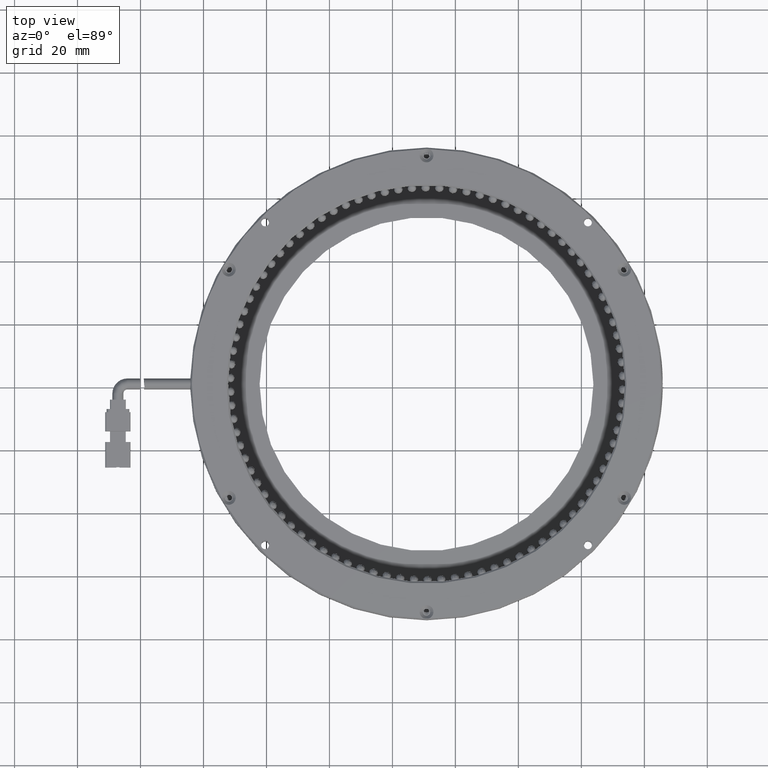
[diagram: clean part render]
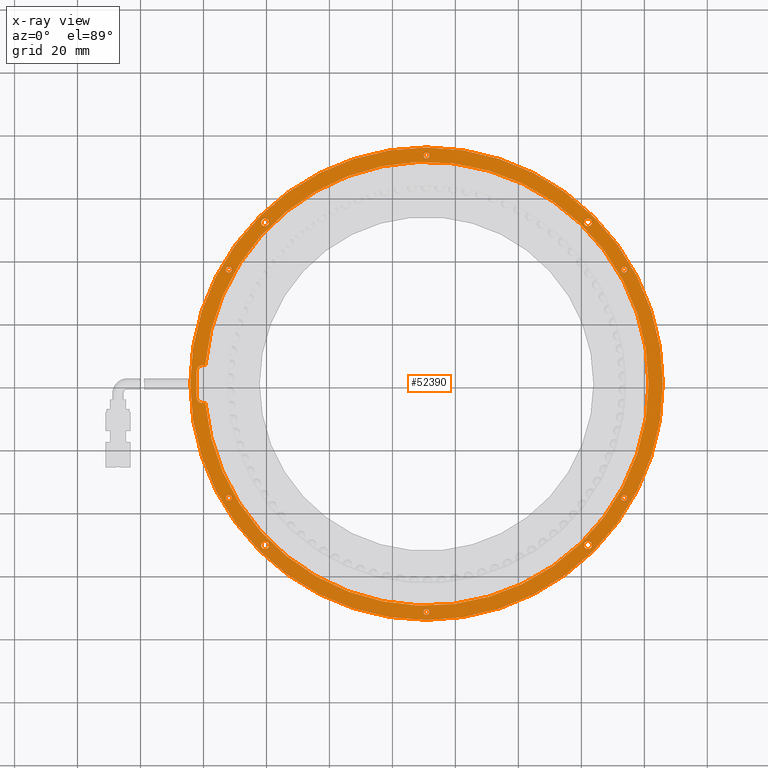
[diagram: x-ray — body ghosted, one internal face saturated and labeled with its STEP entity id]
A machine part, top view, then the same camera in x-ray: the body is ghosted and one INTERNAL B-rep face — a face not visible from any outside direction — is saturated and labeled: STEP entity #52390.
In plain terms, the highlighted planar face has unit normal (0, 0, 1).
Its self-contained STEP definition (entity closure, byte-faithful):
#529 = DIRECTION ( 'NONE',  ( 0.0000000000000000000, 0.0000000000000000000, -1.000000000000000000 ) ) ;
#1080 = DIRECTION ( 'NONE',  ( 0.0000000000000000000, 0.0000000000000000000, -1.000000000000000000 ) ) ;
#1160 = DIRECTION ( 'NONE',  ( 1.000000000000000000, 0.0000000000000000000, 0.0000000000000000000 ) ) ;
#1772 = CARTESIAN_POINT ( 'NONE',  ( 10.82239847715735200, 1.095939086294420100, 3.499999999999937400 ) ) ;
#1985 = DIRECTION ( 'NONE',  ( 0.0000000000000000000, 0.0000000000000000000, -1.000000000000000000 ) ) ;
#2218 = EDGE_LOOP ( 'NONE', ( #38674, #23621, #7528, #10132, #32242, #11933, #12980 ) ) ;
#2380 = LINE ( 'NONE', #49113, #23317 ) ;
#2541 = ORIENTED_EDGE ( 'NONE', *, *, #18518, .T. ) ;
#2583 = CIRCLE ( 'NONE', #45547, 0.9999999999999991100 ) ;
#3196 = VERTEX_POINT ( 'NONE', #19024 ) ;
#3344 = EDGE_LOOP ( 'NONE', ( #58690, #57324 ) ) ;
#3404 = ORIENTED_EDGE ( 'NONE', *, *, #26146, .T. ) ;
#3416 = DIRECTION ( 'NONE',  ( 0.0000000000000000000, 0.0000000000000000000, -1.000000000000000000 ) ) ;
#3761 = CARTESIAN_POINT ( 'NONE',  ( 10.82239847715735200, 1.095939086294420100, 3.499999999999937400 ) ) ;
#3821 = VERTEX_POINT ( 'NONE', #35001 ) ;
#4174 = VERTEX_POINT ( 'NONE', #43969 ) ;
#4506 = CARTESIAN_POINT ( 'NONE',  ( 10.82239847715735200, 1.095939086294420100, 3.499999999999937400 ) ) ;
#4606 = EDGE_CURVE ( 'NONE', #3196, #70110, #60109, .T. ) ;
#4738 = DIRECTION ( 'NONE',  ( 0.0000000000000000000, 0.0000000000000000000, -1.000000000000000000 ) ) ;
#4808 = DIRECTION ( 'NONE',  ( -1.000000000000000000, 0.0000000000000000000, 0.0000000000000000000 ) ) ;
#5698 = CARTESIAN_POINT ( 'NONE',  ( -62.17760152284265700, 4.988395143653201900, 3.499999999999937400 ) ) ;
#5795 = FACE_BOUND ( 'NONE', #50201, .T. ) ;
#7046 = CARTESIAN_POINT ( 'NONE',  ( 10.82239847715735200, 1.095939086294420100, 3.499999999999937400 ) ) ;
#7193 = CARTESIAN_POINT ( 'NONE',  ( 10.82239847715786100, -71.40406091370557800, 3.499999999999937400 ) ) ;
#7342 = DIRECTION ( 'NONE',  ( 0.0000000000000000000, 0.0000000000000000000, -1.000000000000000000 ) ) ;
#7367 = AXIS2_PLACEMENT_3D ( 'NONE', #52627, #16225, #58751 ) ;
#7528 = ORIENTED_EDGE ( 'NONE', *, *, #72624, .T. ) ;
#7615 = AXIS2_PLACEMENT_3D ( 'NONE', #37510, #1080, #43636 ) ;
#7663 = EDGE_CURVE ( 'NONE', #18859, #10379, #54017, .T. ) ;
#7691 = AXIS2_PLACEMENT_3D ( 'NONE', #35673, #78199, #41775 ) ;
#7710 = FACE_BOUND ( 'NONE', #62506, .T. ) ;
#7854 = EDGE_CURVE ( 'NONE', #33839, #59008, #2380, .T. ) ;
#7877 = DIRECTION ( 'NONE',  ( -1.000000000000000000, 0.0000000000000000000, 0.0000000000000000000 ) ) ;
#8466 = VERTEX_POINT ( 'NONE', #56436 ) ;
#9268 = VERTEX_POINT ( 'NONE', #51181 ) ;
#9604 = FACE_OUTER_BOUND ( 'NONE', #35808, .T. ) ;
#9817 = CARTESIAN_POINT ( 'NONE',  ( 81.32239847715736400, 1.095939086294420100, 3.499999999999937400 ) ) ;
#9901 = DIRECTION ( 'NONE',  ( 1.000000000000000000, 0.0000000000000000000, -0.0000000000000000000 ) ) ;
#10132 = ORIENTED_EDGE ( 'NONE', *, *, #13871, .T. ) ;
#10341 = CARTESIAN_POINT ( 'NONE',  ( -39.19284315886763200, 52.36118072231883500, 3.499999999999938700 ) ) ;
#10379 = VERTEX_POINT ( 'NONE', #16891 ) ;
#10679 = DIRECTION ( 'NONE',  ( 1.000000000000000000, 0.0000000000000000000, 0.0000000000000000000 ) ) ;
#10714 = DIRECTION ( 'NONE',  ( 0.0000000000000000000, 0.0000000000000000000, -1.000000000000000000 ) ) ;
#11806 = CIRCLE ( 'NONE', #13100, 2.000000000000001800 ) ;
#11841 = CARTESIAN_POINT ( 'NONE',  ( -40.44284315886761800, 52.36118072231883500, 3.499999999999938700 ) ) ;
#11933 = ORIENTED_EDGE ( 'NONE', *, *, #70489, .T. ) ;
#12803 = CIRCLE ( 'NONE', #52159, 2.000000000000001800 ) ;
#12980 = ORIENTED_EDGE ( 'NONE', *, *, #35526, .T. ) ;
#13100 = AXIS2_PLACEMENT_3D ( 'NONE', #29072, #71523, #35218 ) ;
#13215 = DIRECTION ( 'NONE',  ( 1.000000000000000000, 0.0000000000000000000, 0.0000000000000000000 ) ) ;
#13351 = DIRECTION ( 'NONE',  ( 1.000000000000000000, 0.0000000000000000000, 0.0000000000000000000 ) ) ;
#13871 = EDGE_CURVE ( 'NONE', #72952, #27627, #43177, .T. ) ;
#14044 = CIRCLE ( 'NONE', #20064, 75.00000000000001400 ) ;
#14289 = CARTESIAN_POINT ( 'NONE',  ( 62.08764011318194800, 52.36118072231920500, 3.499999999999938700 ) ) ;
#14328 = CARTESIAN_POINT ( 'NONE',  ( -50.96444329721429500, -35.15406091370587700, 3.499999999999937400 ) ) ;
#14357 = AXIS2_PLACEMENT_3D ( 'NONE', #14289, #56757, #20388 ) ;
#14907 = VERTEX_POINT ( 'NONE', #78791 ) ;
#14914 = VERTEX_POINT ( 'NONE', #72629 ) ;
#15098 = EDGE_LOOP ( 'NONE', ( #3404, #54856 ) ) ;
#15598 = AXIS2_PLACEMENT_3D ( 'NONE', #41187, #4738, #47287 ) ;
#15759 = ORIENTED_EDGE ( 'NONE', *, *, #7663, .T. ) ;
#16155 = ORIENTED_EDGE ( 'NONE', *, *, #53528, .T. ) ;
#16225 = DIRECTION ( 'NONE',  ( 0.0000000000000000000, 0.0000000000000000000, -1.000000000000000000 ) ) ;
#16666 = AXIS2_PLACEMENT_3D ( 'NONE', #25049, #67556, #31196 ) ;
#16786 = CIRCLE ( 'NONE', #47636, 1.000000000000000900 ) ;
#16891 = CARTESIAN_POINT ( 'NONE',  ( -41.69284315886760300, 52.36118072231883500, 3.499999999999938700 ) ) ;
#17441 = CARTESIAN_POINT ( 'NONE',  ( 10.82239847715735200, 1.095939086294420100, 3.499999999999937400 ) ) ;
#17940 = DIRECTION ( 'NONE',  ( 1.000000000000000000, 0.0000000000000000000, 0.0000000000000000000 ) ) ;
#18518 = EDGE_CURVE ( 'NONE', #77062, #3821, #30831, .T. ) ;
#18859 = VERTEX_POINT ( 'NONE', #10341 ) ;
#19024 = CARTESIAN_POINT ( 'NONE',  ( -52.96444329721429500, -35.15406091370587700, 3.499999999999937400 ) ) ;
#19225 = CARTESIAN_POINT ( 'NONE',  ( -64.17760152284266400, 1.095939086294420100, 3.499999999999937400 ) ) ;
#19579 = AXIS2_PLACEMENT_3D ( 'NONE', #43795, #7342, #49874 ) ;
#19890 = CARTESIAN_POINT ( 'NONE',  ( 85.82239847715736400, 1.095939086294429400, 3.499999999999937400 ) ) ;
#20064 = AXIS2_PLACEMENT_3D ( 'NONE', #17441, #60003, #23573 ) ;
#20388 = DIRECTION ( 'NONE',  ( 1.000000000000000000, 0.0000000000000000000, 0.0000000000000000000 ) ) ;
#20985 = AXIS2_PLACEMENT_3D ( 'NONE', #4506, #47082, #10679 ) ;
#21234 = AXIS2_PLACEMENT_3D ( 'NONE', #59541, #23120, #65590 ) ;
#21527 = AXIS2_PLACEMENT_3D ( 'NONE', #3761, #46312, #9901 ) ;
#21877 = PLANE ( 'NONE',  #21527 ) ;
#21901 = AXIS2_PLACEMENT_3D ( 'NONE', #1772, #44304, #7877 ) ;
#21971 = FACE_BOUND ( 'NONE', #23962, .T. ) ;
#22372 = ORIENTED_EDGE ( 'NONE', *, *, #31380, .T. ) ;
#22617 = CIRCLE ( 'NONE', #61285, 70.50000000000000000 ) ;
#23120 = DIRECTION ( 'NONE',  ( 0.0000000000000000000, 0.0000000000000000000, -1.000000000000000000 ) ) ;
#23317 = VECTOR ( 'NONE', #24684, 1000.000000000000000 ) ;
#23573 = DIRECTION ( 'NONE',  ( -1.000000000000000000, 0.0000000000000000000, 0.0000000000000000000 ) ) ;
#23621 = ORIENTED_EDGE ( 'NONE', *, *, #31689, .T. ) ;
#23777 = EDGE_CURVE ( 'NONE', #24259, #53877, #42274, .T. ) ;
#23897 = FACE_BOUND ( 'NONE', #3344, .T. ) ;
#23962 = EDGE_LOOP ( 'NONE', ( #29957, #42124 ) ) ;
#24259 = VERTEX_POINT ( 'NONE', #41057 ) ;
#24406 = ORIENTED_EDGE ( 'NONE', *, *, #49756, .T. ) ;
#24550 = CARTESIAN_POINT ( 'NONE',  ( 73.60924025152948500, -35.15406091370500300, 3.499999999999937400 ) ) ;
#24684 = DIRECTION ( 'NONE',  ( -0.0000000000000000000, 1.000000000000000000, 0.0000000000000000000 ) ) ;
#25049 = CARTESIAN_POINT ( 'NONE',  ( -40.44284315886688600, -50.16930254973072300, 3.499999999999938700 ) ) ;
#25619 = VECTOR ( 'NONE', #70657, 1000.000000000000000 ) ;
#26092 = CARTESIAN_POINT ( 'NONE',  ( -51.96444329721429500, -35.15406091370587700, 3.499999999999937400 ) ) ;
#26146 = EDGE_CURVE ( 'NONE', #70110, #3196, #66838, .T. ) ;
#26247 = DIRECTION ( 'NONE',  ( 1.000000000000000000, 0.0000000000000000000, -0.0000000000000000000 ) ) ;
#26289 = CIRCLE ( 'NONE', #67101, 1.249999999999987100 ) ;
#26496 = EDGE_CURVE ( 'NONE', #55736, #33042, #72440, .T. ) ;
#26709 = CIRCLE ( 'NONE', #56013, 0.9999999999999991100 ) ;
#27627 = VERTEX_POINT ( 'NONE', #9817 ) ;
#28180 = CARTESIAN_POINT ( 'NONE',  ( -62.17760152284264300, -5.011604856346799000, 3.499999999999937400 ) ) ;
#28470 = CIRCLE ( 'NONE', #33759, 1.249999999999987100 ) ;
#29072 = CARTESIAN_POINT ( 'NONE',  ( -60.17760152284265700, 4.988395143653201900, 3.499999999999937400 ) ) ;
#29221 = VERTEX_POINT ( 'NONE', #39342 ) ;
#29957 = ORIENTED_EDGE ( 'NONE', *, *, #63773, .T. ) ;
#30101 = CARTESIAN_POINT ( 'NONE',  ( 62.08764011318267300, -50.16930254972964300, 3.499999999999938700 ) ) ;
#30118 = VERTEX_POINT ( 'NONE', #60185 ) ;
#30412 = VERTEX_POINT ( 'NONE', #69118 ) ;
#30720 = DIRECTION ( 'NONE',  ( 1.000000000000000000, 0.0000000000000000000, 0.0000000000000000000 ) ) ;
#30831 = CIRCLE ( 'NONE', #7615, 1.000000000000000900 ) ;
#31196 = DIRECTION ( 'NONE',  ( 1.000000000000000000, 0.0000000000000000000, 0.0000000000000000000 ) ) ;
#31380 = EDGE_CURVE ( 'NONE', #14907, #50637, #59469, .T. ) ;
#31689 = EDGE_CURVE ( 'NONE', #59008, #45593, #11806, .T. ) ;
#32242 = ORIENTED_EDGE ( 'NONE', *, *, #34692, .T. ) ;
#32270 = DIRECTION ( 'NONE',  ( 1.000000000000000000, 0.0000000000000000000, 0.0000000000000000000 ) ) ;
#32576 = VERTEX_POINT ( 'NONE', #63509 ) ;
#33042 = VERTEX_POINT ( 'NONE', #38718 ) ;
#33136 = AXIS2_PLACEMENT_3D ( 'NONE', #37017, #529, #43090 ) ;
#33759 = AXIS2_PLACEMENT_3D ( 'NONE', #11841, #54360, #17940 ) ;
#33821 = VECTOR ( 'NONE', #26247, 1000.000000000000000 ) ;
#33839 = VERTEX_POINT ( 'NONE', #77193 ) ;
#34074 = ORIENTED_EDGE ( 'NONE', *, *, #50395, .T. ) ;
#34350 = DIRECTION ( 'NONE',  ( 0.0000000000000000000, 0.0000000000000000000, -1.000000000000000000 ) ) ;
#34405 = EDGE_LOOP ( 'NONE', ( #2541, #72035 ) ) ;
#34692 = EDGE_CURVE ( 'NONE', #27627, #29221, #22617, .T. ) ;
#34817 = CARTESIAN_POINT ( 'NONE',  ( -39.19284315886690000, -50.16930254973072300, 3.499999999999938700 ) ) ;
#35001 = CARTESIAN_POINT ( 'NONE',  ( 72.60924025152871800, 37.34593908629515400, 3.499999999999937400 ) ) ;
#35218 = DIRECTION ( 'NONE',  ( -1.000000000000000000, 0.0000000000000000000, 0.0000000000000000000 ) ) ;
#35526 = EDGE_CURVE ( 'NONE', #8466, #33839, #12803, .T. ) ;
#35673 = CARTESIAN_POINT ( 'NONE',  ( 62.08764011318194800, 52.36118072231920500, 3.499999999999938700 ) ) ;
#35808 = EDGE_LOOP ( 'NONE', ( #78816, #57613 ) ) ;
#35989 = CARTESIAN_POINT ( 'NONE',  ( 73.60924025152948500, -35.15406091370500300, 3.499999999999937400 ) ) ;
#36233 = DIRECTION ( 'NONE',  ( 1.000000000000000000, 0.0000000000000000000, 0.0000000000000000000 ) ) ;
#36654 = EDGE_LOOP ( 'NONE', ( #15759, #34074 ) ) ;
#37017 = CARTESIAN_POINT ( 'NONE',  ( -51.96444329721429500, -35.15406091370587700, 3.499999999999937400 ) ) ;
#37253 = EDGE_CURVE ( 'NONE', #14914, #69201, #46880, .T. ) ;
#37510 = CARTESIAN_POINT ( 'NONE',  ( 73.60924025152871800, 37.34593908629515400, 3.499999999999937400 ) ) ;
#37599 = DIRECTION ( 'NONE',  ( 0.0000000000000000000, 0.0000000000000000000, -1.000000000000000000 ) ) ;
#37757 = ORIENTED_EDGE ( 'NONE', *, *, #64796, .T. ) ;
#38159 = FACE_BOUND ( 'NONE', #36654, .T. ) ;
#38403 = CARTESIAN_POINT ( 'NONE',  ( -51.96444329721453000, 37.34593908629427300, 3.499999999999937400 ) ) ;
#38516 = EDGE_LOOP ( 'NONE', ( #76820, #24406 ) ) ;
#38674 = ORIENTED_EDGE ( 'NONE', *, *, #7854, .T. ) ;
#38718 = CARTESIAN_POINT ( 'NONE',  ( 60.83764011318196200, 52.36118072231920500, 3.499999999999938700 ) ) ;
#39102 = CIRCLE ( 'NONE', #14357, 1.249999999999987100 ) ;
#39342 = CARTESIAN_POINT ( 'NONE',  ( -59.41254942620987100, -5.011604856346798100, 3.499999999999937400 ) ) ;
#39380 = CIRCLE ( 'NONE', #21901, 75.00000000000001400 ) ;
#39873 = CARTESIAN_POINT ( 'NONE',  ( 10.82239847715735000, 73.59593908629442200, 3.499999999999937400 ) ) ;
#40033 = FACE_BOUND ( 'NONE', #42706, .T. ) ;
#40199 = AXIS2_PLACEMENT_3D ( 'NONE', #73989, #37599, #1160 ) ;
#40442 = CIRCLE ( 'NONE', #15598, 0.9999999999999991100 ) ;
#41057 = CARTESIAN_POINT ( 'NONE',  ( 60.83764011318268700, -50.16930254972964300, 3.499999999999938700 ) ) ;
#41187 = CARTESIAN_POINT ( 'NONE',  ( 10.82239847715786100, -71.40406091370557800, 3.499999999999937400 ) ) ;
#41247 = DIRECTION ( 'NONE',  ( 0.0000000000000000000, 0.0000000000000000000, -1.000000000000000000 ) ) ;
#41616 = CARTESIAN_POINT ( 'NONE',  ( 63.33764011318193400, 52.36118072231920500, 3.499999999999938700 ) ) ;
#41775 = DIRECTION ( 'NONE',  ( 1.000000000000000000, 0.0000000000000000000, 0.0000000000000000000 ) ) ;
#42075 = DIRECTION ( 'NONE',  ( 1.000000000000000000, 0.0000000000000000000, 0.0000000000000000000 ) ) ;
#42124 = ORIENTED_EDGE ( 'NONE', *, *, #71877, .T. ) ;
#42274 = CIRCLE ( 'NONE', #65386, 1.249999999999987100 ) ;
#42706 = EDGE_LOOP ( 'NONE', ( #76979, #22372 ) ) ;
#43090 = DIRECTION ( 'NONE',  ( 1.000000000000000000, 0.0000000000000000000, 0.0000000000000000000 ) ) ;
#43177 = CIRCLE ( 'NONE', #20985, 70.50000000000000000 ) ;
#43636 = DIRECTION ( 'NONE',  ( 1.000000000000000000, 0.0000000000000000000, 0.0000000000000000000 ) ) ;
#43795 = CARTESIAN_POINT ( 'NONE',  ( -51.96444329721453000, 37.34593908629427300, 3.499999999999937400 ) ) ;
#43969 = CARTESIAN_POINT ( 'NONE',  ( -41.69284315886687200, -50.16930254973072300, 3.499999999999938700 ) ) ;
#44304 = DIRECTION ( 'NONE',  ( 0.0000000000000000000, 0.0000000000000000000, 1.000000000000000000 ) ) ;
#44551 = DIRECTION ( 'NONE',  ( 1.000000000000000000, 0.0000000000000000000, 0.0000000000000000000 ) ) ;
#44854 = AXIS2_PLACEMENT_3D ( 'NONE', #26092, #68629, #32270 ) ;
#45547 = AXIS2_PLACEMENT_3D ( 'NONE', #39873, #3416, #45979 ) ;
#45593 = VERTEX_POINT ( 'NONE', #65823 ) ;
#45979 = DIRECTION ( 'NONE',  ( 1.000000000000000000, 0.0000000000000000000, 0.0000000000000000000 ) ) ;
#46312 = DIRECTION ( 'NONE',  ( 0.0000000000000000000, 0.0000000000000000000, 1.000000000000000000 ) ) ;
#46880 = CIRCLE ( 'NONE', #57479, 1.000000000000000900 ) ;
#47082 = DIRECTION ( 'NONE',  ( 0.0000000000000000000, 0.0000000000000000000, -1.000000000000000000 ) ) ;
#47125 = CARTESIAN_POINT ( 'NONE',  ( 62.08764011318267300, -50.16930254972964300, 3.499999999999938700 ) ) ;
#47287 = DIRECTION ( 'NONE',  ( 1.000000000000000000, 0.0000000000000000000, 0.0000000000000000000 ) ) ;
#47636 = AXIS2_PLACEMENT_3D ( 'NONE', #24550, #67015, #30720 ) ;
#47948 = AXIS2_PLACEMENT_3D ( 'NONE', #70706, #34350, #76926 ) ;
#48152 = ORIENTED_EDGE ( 'NONE', *, *, #50989, .T. ) ;
#48389 = ORIENTED_EDGE ( 'NONE', *, *, #37253, .T. ) ;
#48830 = VERTEX_POINT ( 'NONE', #34817 ) ;
#49113 = CARTESIAN_POINT ( 'NONE',  ( -62.17760152284264300, 1.095939086294420100, 3.499999999999937400 ) ) ;
#49584 = DIRECTION ( 'NONE',  ( 0.0000000000000000000, 0.0000000000000000000, -1.000000000000000000 ) ) ;
#49737 = DIRECTION ( 'NONE',  ( 0.0000000000000000000, 0.0000000000000000000, -1.000000000000000000 ) ) ;
#49756 = EDGE_CURVE ( 'NONE', #32576, #30412, #62764, .T. ) ;
#49874 = DIRECTION ( 'NONE',  ( 1.000000000000000000, 0.0000000000000000000, 0.0000000000000000000 ) ) ;
#50059 = ORIENTED_EDGE ( 'NONE', *, *, #23777, .T. ) ;
#50201 = EDGE_LOOP ( 'NONE', ( #48152, #50059 ) ) ;
#50395 = EDGE_CURVE ( 'NONE', #10379, #18859, #28470, .T. ) ;
#50552 = CARTESIAN_POINT ( 'NONE',  ( 74.60924025152871800, 37.34593908629515400, 3.499999999999937400 ) ) ;
#50637 = VERTEX_POINT ( 'NONE', #56642 ) ;
#50989 = EDGE_CURVE ( 'NONE', #53877, #24259, #26289, .T. ) ;
#51181 = CARTESIAN_POINT ( 'NONE',  ( 9.822398477157861400, -71.40406091370557800, 3.499999999999937400 ) ) ;
#51942 = CARTESIAN_POINT ( 'NONE',  ( 72.60924025152948500, -35.15406091370500300, 3.499999999999937400 ) ) ;
#52159 = AXIS2_PLACEMENT_3D ( 'NONE', #77688, #41247, #4808 ) ;
#52390 = ADVANCED_FACE ( 'NONE', ( #9604, #72359, #40033, #56179, #23897, #7710, #70434, #54321, #38159, #21971, #5795, #68561 ), #21877, .T. ) ;
#52587 = CIRCLE ( 'NONE', #40199, 1.249999999999987100 ) ;
#52627 = CARTESIAN_POINT ( 'NONE',  ( 73.60924025152871800, 37.34593908629515400, 3.499999999999937400 ) ) ;
#52994 = EDGE_CURVE ( 'NONE', #50637, #14907, #58820, .T. ) ;
#53237 = DIRECTION ( 'NONE',  ( 1.000000000000000000, 0.0000000000000000000, 0.0000000000000000000 ) ) ;
#53528 = EDGE_CURVE ( 'NONE', #69201, #14914, #16786, .T. ) ;
#53877 = VERTEX_POINT ( 'NONE', #65094 ) ;
#54017 = CIRCLE ( 'NONE', #21234, 1.249999999999987100 ) ;
#54321 = FACE_BOUND ( 'NONE', #57460, .T. ) ;
#54360 = DIRECTION ( 'NONE',  ( 0.0000000000000000000, 0.0000000000000000000, -1.000000000000000000 ) ) ;
#54856 = ORIENTED_EDGE ( 'NONE', *, *, #4606, .T. ) ;
#55584 = CIRCLE ( 'NONE', #16666, 1.249999999999987100 ) ;
#55736 = VERTEX_POINT ( 'NONE', #41616 ) ;
#56013 = AXIS2_PLACEMENT_3D ( 'NONE', #7193, #49737, #13351 ) ;
#56030 = CIRCLE ( 'NONE', #7367, 1.000000000000000900 ) ;
#56179 = FACE_BOUND ( 'NONE', #15098, .T. ) ;
#56436 = CARTESIAN_POINT ( 'NONE',  ( -60.17760152284265700, -5.011604856346799900, 3.499999999999937400 ) ) ;
#56642 = CARTESIAN_POINT ( 'NONE',  ( -50.96444329721453000, 37.34593908629427300, 3.499999999999937400 ) ) ;
#56757 = DIRECTION ( 'NONE',  ( 0.0000000000000000000, 0.0000000000000000000, -1.000000000000000000 ) ) ;
#57324 = ORIENTED_EDGE ( 'NONE', *, *, #62972, .T. ) ;
#57460 = EDGE_LOOP ( 'NONE', ( #68999, #37757 ) ) ;
#57479 = AXIS2_PLACEMENT_3D ( 'NONE', #35989, #78485, #42075 ) ;
#57613 = ORIENTED_EDGE ( 'NONE', *, *, #65835, .T. ) ;
#58690 = ORIENTED_EDGE ( 'NONE', *, *, #64201, .T. ) ;
#58751 = DIRECTION ( 'NONE',  ( 1.000000000000000000, 0.0000000000000000000, 0.0000000000000000000 ) ) ;
#58820 = CIRCLE ( 'NONE', #19579, 1.000000000000000900 ) ;
#59008 = VERTEX_POINT ( 'NONE', #5698 ) ;
#59469 = CIRCLE ( 'NONE', #74691, 1.000000000000000900 ) ;
#59541 = CARTESIAN_POINT ( 'NONE',  ( -40.44284315886761800, 52.36118072231883500, 3.499999999999938700 ) ) ;
#60003 = DIRECTION ( 'NONE',  ( 0.0000000000000000000, 0.0000000000000000000, 1.000000000000000000 ) ) ;
#60109 = CIRCLE ( 'NONE', #33136, 1.000000000000000900 ) ;
#60185 = CARTESIAN_POINT ( 'NONE',  ( 11.82239847715786000, -71.40406091370557800, 3.499999999999937400 ) ) ;
#61285 = AXIS2_PLACEMENT_3D ( 'NONE', #7046, #49584, #13215 ) ;
#61720 = EDGE_CURVE ( 'NONE', #30412, #32576, #2583, .T. ) ;
#62506 = EDGE_LOOP ( 'NONE', ( #48389, #16155 ) ) ;
#62690 = CARTESIAN_POINT ( 'NONE',  ( -57.93513150267762100, 6.988395143653201000, 3.499999999999937400 ) ) ;
#62764 = CIRCLE ( 'NONE', #47948, 0.9999999999999991100 ) ;
#62972 = EDGE_CURVE ( 'NONE', #9268, #30118, #40442, .T. ) ;
#63509 = CARTESIAN_POINT ( 'NONE',  ( 9.822398477157351600, 73.59593908629442200, 3.499999999999937400 ) ) ;
#63773 = EDGE_CURVE ( 'NONE', #48830, #4174, #52587, .T. ) ;
#64201 = EDGE_CURVE ( 'NONE', #30118, #9268, #26709, .T. ) ;
#64796 = EDGE_CURVE ( 'NONE', #33042, #55736, #39102, .T. ) ;
#65094 = CARTESIAN_POINT ( 'NONE',  ( 63.33764011318265800, -50.16930254972964300, 3.499999999999938700 ) ) ;
#65386 = AXIS2_PLACEMENT_3D ( 'NONE', #47125, #10714, #53237 ) ;
#65590 = DIRECTION ( 'NONE',  ( 1.000000000000000000, 0.0000000000000000000, 0.0000000000000000000 ) ) ;
#65823 = CARTESIAN_POINT ( 'NONE',  ( -60.17760152284265700, 6.988395143653201900, 3.499999999999937400 ) ) ;
#65835 = EDGE_CURVE ( 'NONE', #67184, #71904, #14044, .T. ) ;
#66105 = LINE ( 'NONE', #62690, #33821 ) ;
#66298 = CARTESIAN_POINT ( 'NONE',  ( -59.43092145586856400, 6.988395143653203700, 3.499999999999937400 ) ) ;
#66838 = CIRCLE ( 'NONE', #44854, 1.000000000000000900 ) ;
#67015 = DIRECTION ( 'NONE',  ( 0.0000000000000000000, 0.0000000000000000000, -1.000000000000000000 ) ) ;
#67101 = AXIS2_PLACEMENT_3D ( 'NONE', #30101, #72574, #36233 ) ;
#67184 = VERTEX_POINT ( 'NONE', #19890 ) ;
#67556 = DIRECTION ( 'NONE',  ( 0.0000000000000000000, 0.0000000000000000000, -1.000000000000000000 ) ) ;
#68561 = FACE_BOUND ( 'NONE', #2218, .T. ) ;
#68629 = DIRECTION ( 'NONE',  ( 0.0000000000000000000, 0.0000000000000000000, -1.000000000000000000 ) ) ;
#68999 = ORIENTED_EDGE ( 'NONE', *, *, #26496, .T. ) ;
#69118 = CARTESIAN_POINT ( 'NONE',  ( 11.82239847715735000, 73.59593908629442200, 3.499999999999937400 ) ) ;
#69201 = VERTEX_POINT ( 'NONE', #51942 ) ;
#70110 = VERTEX_POINT ( 'NONE', #14328 ) ;
#70434 = FACE_BOUND ( 'NONE', #34405, .T. ) ;
#70489 = EDGE_CURVE ( 'NONE', #29221, #8466, #72207, .T. ) ;
#70508 = EDGE_CURVE ( 'NONE', #3821, #77062, #56030, .T. ) ;
#70657 = DIRECTION ( 'NONE',  ( -1.000000000000000000, -0.0000000000000000000, -0.0000000000000000000 ) ) ;
#70706 = CARTESIAN_POINT ( 'NONE',  ( 10.82239847715735000, 73.59593908629442200, 3.499999999999937400 ) ) ;
#71523 = DIRECTION ( 'NONE',  ( 0.0000000000000000000, 0.0000000000000000000, -1.000000000000000000 ) ) ;
#71877 = EDGE_CURVE ( 'NONE', #4174, #48830, #55584, .T. ) ;
#71904 = VERTEX_POINT ( 'NONE', #19225 ) ;
#72035 = ORIENTED_EDGE ( 'NONE', *, *, #70508, .T. ) ;
#72207 = LINE ( 'NONE', #28180, #25619 ) ;
#72359 = FACE_BOUND ( 'NONE', #38516, .T. ) ;
#72440 = CIRCLE ( 'NONE', #7691, 1.249999999999987100 ) ;
#72574 = DIRECTION ( 'NONE',  ( 0.0000000000000000000, 0.0000000000000000000, -1.000000000000000000 ) ) ;
#72624 = EDGE_CURVE ( 'NONE', #45593, #72952, #66105, .T. ) ;
#72629 = CARTESIAN_POINT ( 'NONE',  ( 74.60924025152948500, -35.15406091370500300, 3.499999999999937400 ) ) ;
#72952 = VERTEX_POINT ( 'NONE', #66298 ) ;
#73222 = EDGE_CURVE ( 'NONE', #71904, #67184, #39380, .T. ) ;
#73989 = CARTESIAN_POINT ( 'NONE',  ( -40.44284315886688600, -50.16930254973072300, 3.499999999999938700 ) ) ;
#74691 = AXIS2_PLACEMENT_3D ( 'NONE', #38403, #1985, #44551 ) ;
#76820 = ORIENTED_EDGE ( 'NONE', *, *, #61720, .T. ) ;
#76926 = DIRECTION ( 'NONE',  ( 1.000000000000000000, 0.0000000000000000000, 0.0000000000000000000 ) ) ;
#76979 = ORIENTED_EDGE ( 'NONE', *, *, #52994, .T. ) ;
#77062 = VERTEX_POINT ( 'NONE', #50552 ) ;
#77193 = CARTESIAN_POINT ( 'NONE',  ( -62.17760152284264300, -3.011604856346799400, 3.499999999999937400 ) ) ;
#77688 = CARTESIAN_POINT ( 'NONE',  ( -60.17760152284265700, -3.011604856346799400, 3.499999999999937400 ) ) ;
#78199 = DIRECTION ( 'NONE',  ( 0.0000000000000000000, 0.0000000000000000000, -1.000000000000000000 ) ) ;
#78485 = DIRECTION ( 'NONE',  ( 0.0000000000000000000, 0.0000000000000000000, -1.000000000000000000 ) ) ;
#78791 = CARTESIAN_POINT ( 'NONE',  ( -52.96444329721453000, 37.34593908629427300, 3.499999999999937400 ) ) ;
#78816 = ORIENTED_EDGE ( 'NONE', *, *, #73222, .T. ) ;